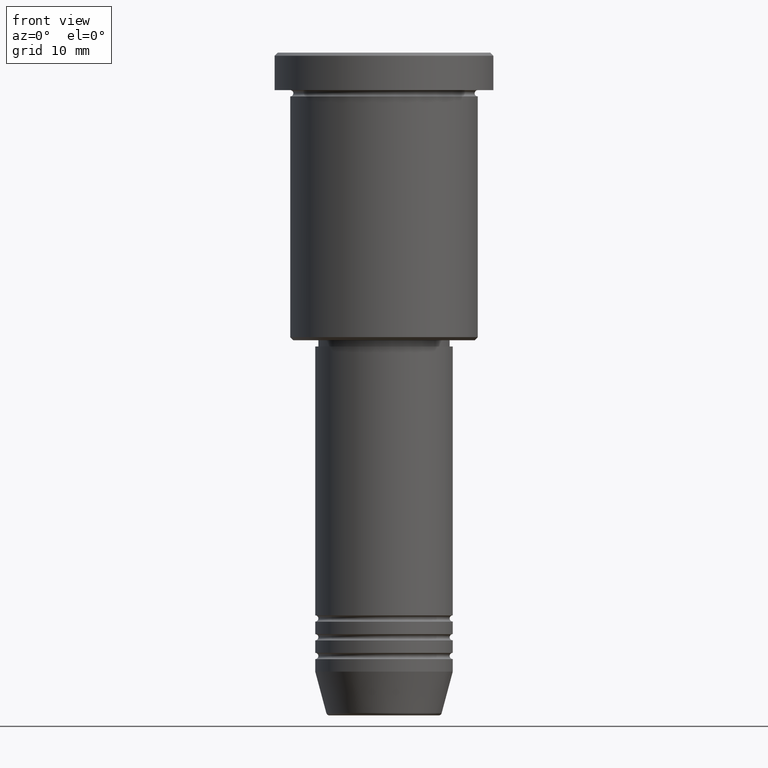
[diagram: clean part render]
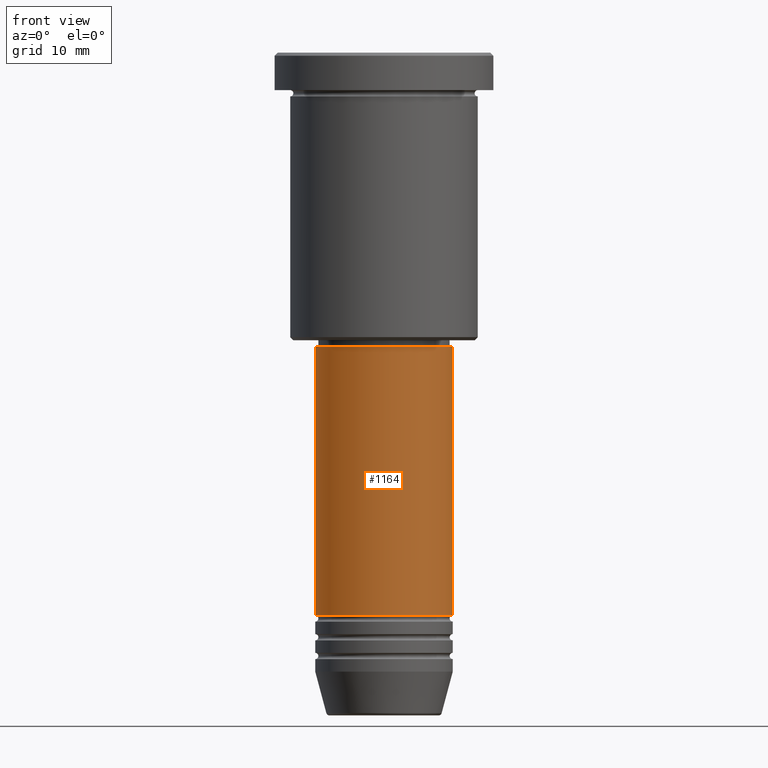
[diagram: same view with one face highlighted and labeled with its STEP entity id]
A machine part, front view. The second image highlights one B-rep face of the part: STEP entity #1164.
In plain terms, the highlighted cylindrical surface (partial cylindrical patch) has radius 11 mm, axis along (-0, -0, 1).
Its self-contained STEP definition (entity closure, byte-faithful):
#28 = VECTOR ( 'NONE', #753, 1000.000000000000000 ) ;
#51 = EDGE_CURVE ( 'NONE', #660, #371, #770, .T. ) ;
#61 = VECTOR ( 'NONE', #683, 1000.000000000000000 ) ;
#71 = VERTEX_POINT ( 'NONE', #282 ) ;
#73 = FACE_OUTER_BOUND ( 'NONE', #98, .T. ) ;
#98 = EDGE_LOOP ( 'NONE', ( #345, #142, #293, #831 ) ) ;
#142 = ORIENTED_EDGE ( 'NONE', *, *, #708, .T. ) ;
#143 = EDGE_CURVE ( 'NONE', #71, #588, #380, .T. ) ;
#217 = CARTESIAN_POINT ( 'NONE',  ( 11.00000000000000000, 0.000000000000000000, 0.000000000000000000 ) ) ;
#227 = DIRECTION ( 'NONE',  ( -0.000000000000000000, -0.000000000000000000, 1.000000000000000000 ) ) ;
#241 = CARTESIAN_POINT ( 'NONE',  ( 11.00000000000000000, 0.000000000000000000, -89.99999999999997158 ) ) ;
#249 = CIRCLE ( 'NONE', #777, 11.00000000000000000 ) ;
#282 = CARTESIAN_POINT ( 'NONE',  ( -11.00000000000000000, 1.347111479062088405E-15, -89.99999999999997158 ) ) ;
#293 = ORIENTED_EDGE ( 'NONE', *, *, #51, .T. ) ;
#310 = AXIS2_PLACEMENT_3D ( 'NONE', #922, #857, #482 ) ;
#344 = CYLINDRICAL_SURFACE ( 'NONE', #946, 11.00000000000000000 ) ;
#345 = ORIENTED_EDGE ( 'NONE', *, *, #143, .F. ) ;
#371 = VERTEX_POINT ( 'NONE', #1165 ) ;
#380 = LINE ( 'NONE', #749, #28 ) ;
#464 = EDGE_CURVE ( 'NONE', #588, #371, #944, .T. ) ;
#482 = DIRECTION ( 'NONE',  ( 1.000000000000000000, 0.000000000000000000, 0.000000000000000000 ) ) ;
#533 = CARTESIAN_POINT ( 'NONE',  ( 0.000000000000000000, 0.000000000000000000, 0.000000000000000000 ) ) ;
#588 = VERTEX_POINT ( 'NONE', #1027 ) ;
#612 = DIRECTION ( 'NONE',  ( 1.000000000000000000, 0.000000000000000000, 0.000000000000000000 ) ) ;
#660 = VERTEX_POINT ( 'NONE', #241 ) ;
#683 = DIRECTION ( 'NONE',  ( -0.000000000000000000, -0.000000000000000000, 1.000000000000000000 ) ) ;
#708 = EDGE_CURVE ( 'NONE', #71, #660, #249, .T. ) ;
#749 = CARTESIAN_POINT ( 'NONE',  ( -11.00000000000000000, 1.347111479062088405E-15, 0.000000000000000000 ) ) ;
#753 = DIRECTION ( 'NONE',  ( -0.000000000000000000, -0.000000000000000000, 1.000000000000000000 ) ) ;
#770 = LINE ( 'NONE', #217, #61 ) ;
#777 = AXIS2_PLACEMENT_3D ( 'NONE', #948, #227, #612 ) ;
#831 = ORIENTED_EDGE ( 'NONE', *, *, #464, .F. ) ;
#857 = DIRECTION ( 'NONE',  ( -0.000000000000000000, -0.000000000000000000, 1.000000000000000000 ) ) ;
#922 = CARTESIAN_POINT ( 'NONE',  ( 0.000000000000000000, 0.000000000000000000, -47.00000000000000711 ) ) ;
#944 = CIRCLE ( 'NONE', #310, 11.00000000000000000 ) ;
#946 = AXIS2_PLACEMENT_3D ( 'NONE', #533, #1088, #996 ) ;
#948 = CARTESIAN_POINT ( 'NONE',  ( 0.000000000000000000, 0.000000000000000000, -89.99999999999997158 ) ) ;
#996 = DIRECTION ( 'NONE',  ( 1.000000000000000000, 0.000000000000000000, 0.000000000000000000 ) ) ;
#1027 = CARTESIAN_POINT ( 'NONE',  ( -11.00000000000000000, 1.347111479062088405E-15, -47.00000000000000711 ) ) ;
#1088 = DIRECTION ( 'NONE',  ( -0.000000000000000000, -0.000000000000000000, 1.000000000000000000 ) ) ;
#1164 = ADVANCED_FACE ( 'NONE', ( #73 ), #344, .T. ) ;
#1165 = CARTESIAN_POINT ( 'NONE',  ( 11.00000000000000000, 0.000000000000000000, -47.00000000000000711 ) ) ;